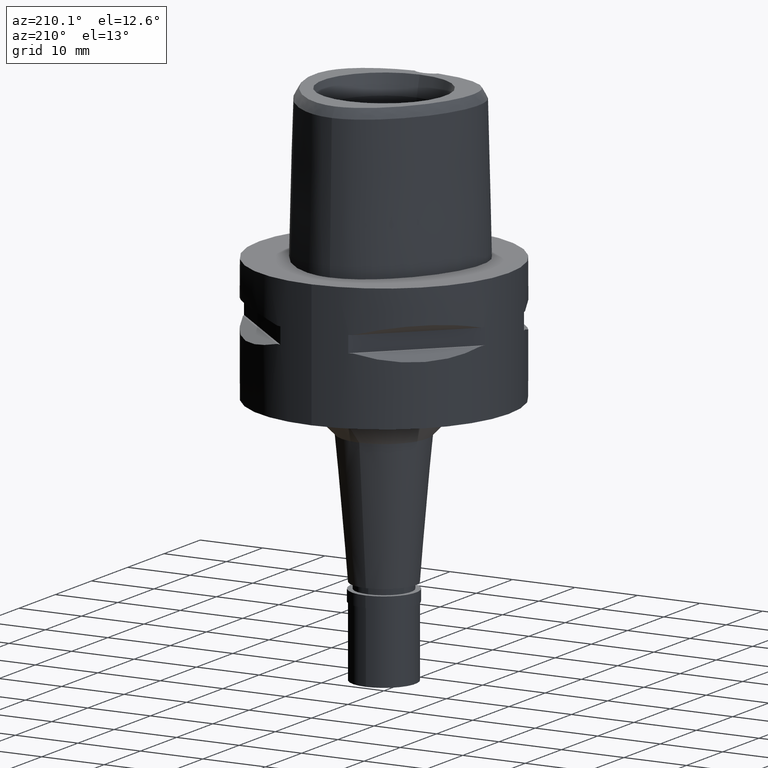
[diagram: clean part render]
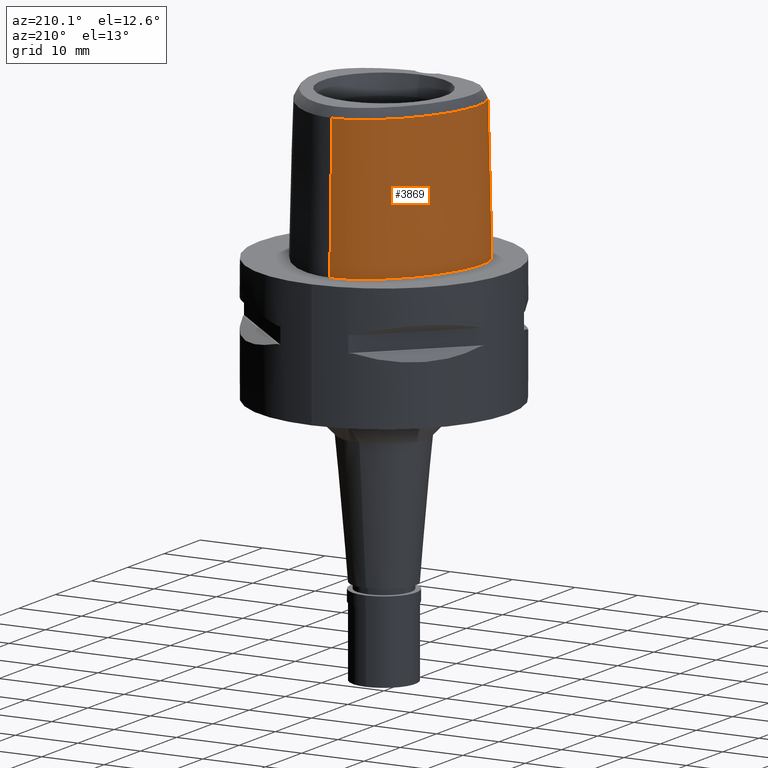
[diagram: same view with one face highlighted and labeled with its STEP entity id]
A machine part, auxiliary view. The second image highlights one B-rep face of the part: STEP entity #3869.
In plain terms, the highlighted face is a freeform B-spline surface patch.
Its self-contained STEP definition (entity closure, byte-faithful):
#5 = CARTESIAN_POINT ( 'NONE',  ( -12.64198523181999967, -7.298853576185000414, 15.16398389776999878 ) ) ;
#20 = CARTESIAN_POINT ( 'NONE',  ( -2.300143802991292841, -12.76057655722843620, 11.36375986572100061 ) ) ;
#30 = CARTESIAN_POINT ( 'NONE',  ( -4.045377554527999742, -12.93507169241999932, -0.4504153632999999823 ) ) ;
#39 = B_SPLINE_CURVE_WITH_KNOTS ( 'NONE', 3,
 ( #2397, #2423, #653, #961, #1726, #3074, #1309, #3142, #3451, #2718, #3775, #633, #2032, #2073, #4566, #2806, #2053, #1384, #4232, #2788, #2440, #3866, #1052, #1680, #673, #582, #2096, #3519, #2372, #4516, #3797, #1332, #94, #2158, #3627, #3228, #2118, #3181, #3579, #2528, #3557, #20, #441, #42, #2875, #4255, #2829, #720, #373, #1857, #742, #418, #4323, #1445, #3910, #2901, #4275, #2138, #1786, #3205, #3274, #1833, #767, #1142, #3251, #702, #3539, #2504, #2184, #3951, #2855, #1097, #1463, #354, #68, #4295, #1767, #1117, #3930, #3974, #1512 ),
 .UNSPECIFIED., .F., .F.,
 ( 4, 2, 2, 1, 1, 2, 2, 2, 2, 1, 2, 1, 2, 2, 2, 2, 1, 1, 2, 2, 2, 2, 2, 2, 2, 2, 1, 1, 2, 2, 2, 2, 1, 2, 2, 2, 1, 1, 2, 2, 2, 2, 1, 1, 2, 2, 4 ),
 ( 0.0000000000000000000, 0.06250000000000464906, 0.09375000000000696665, 0.1093750000000080352, 0.1171875000000085904, 0.1210937500000090067, 0.1250000000000094369, 0.1562500000000116573, 0.1718750000000128231, 0.1875000000000139888, 0.2187500000000159317, 0.2343750000000169587, 0.2421875000000176803, 0.2500000000000183742, 0.3125000000000260347, 0.3437500000000298650, 0.3593750000000314748, 0.3671875000000318634, 0.3710937500000320299, 0.3750000000000322520, 0.4375000000000294764, 0.4687500000000284772, 0.4843750000000283107, 0.5000000000000280886, 0.5625000000000253131, 0.5937500000000238698, 0.6093750000000230926, 0.6171875000000228706, 0.6210937500000223155, 0.6250000000000218714, 0.6562500000000139888, 0.6718750000000099920, 0.6796875000000082157, 0.6835937500000076605, 0.6875000000000071054, 0.7187500000000037748, 0.7343750000000019984, 0.7421875000000011102, 0.7460937500000009992, 0.7500000000000007772, 0.8124999999999993339, 0.8437499999999986677, 0.8593749999999984457, 0.8671874999999984457, 0.8710937499999985567, 0.8749999999999985567, 1.000000000000000000 ),
 .UNSPECIFIED. ) ;
#42 = CARTESIAN_POINT ( 'NONE',  ( -2.245603534414450930, -12.77547641080668406, 10.99707330927152427 ) ) ;
#53 = CARTESIAN_POINT ( 'NONE',  ( -11.56079930577999981, -8.766973826563997818, 15.16398389776999878 ) ) ;
#68 = CARTESIAN_POINT ( 'NONE',  ( -0.9319488030645941556, -12.90881411230990494, 9.397158616747541160 ) ) ;
#81 = CARTESIAN_POINT ( 'NONE',  ( -7.098705609568999542, -11.85792495233000032, 7.356784267233999586 ) ) ;
#94 = CARTESIAN_POINT ( 'NONE',  ( -2.120426573750170185, -12.75267573305423774, 12.39100281169534590 ) ) ;
#98 = CARTESIAN_POINT ( 'NONE',  ( -11.83679699234384941, -9.028767383116687029, -1.760277199610443821E-08 ) ) ;
#109 = CARTESIAN_POINT ( 'NONE',  ( -12.99424142200999910, -6.606040289884000494, 15.16398389776999878 ) ) ;
#126 = CARTESIAN_POINT ( 'NONE',  ( -1.745769949806297294, -12.61172391797590642, 19.99999964621425264 ) ) ;
#136 = VERTEX_POINT ( 'NONE', #3650 ) ;
#140 = CARTESIAN_POINT ( 'NONE',  ( -13.73754041481490162, -5.736583203249609575, -1.760271651205826127E-08 ) ) ;
#206 = B_SPLINE_CURVE_WITH_KNOTS ( 'NONE', 3,
 ( #1184, #4083, #1883, #1530 ),
 .UNSPECIFIED., .F., .F.,
 ( 4, 4 ),
 ( 0.0000000000000000000, 1.000000000000000000 ),
 .UNSPECIFIED. ) ;
#273 = CARTESIAN_POINT ( 'NONE',  ( -0.3913005304272000329, 14.99062904159000098, -0.4504153632999999823 ) ) ;
#296 = CARTESIAN_POINT ( 'NONE',  ( -0.3608217409869999837, 14.40386518138999783, 22.97118352829999921 ) ) ;
#306 = B_SPLINE_CURVE_WITH_KNOTS ( 'NONE', 3,
 ( #3367, #4130, #3433, #1596 ),
 .UNSPECIFIED., .F., .F.,
 ( 4, 4 ),
 ( 0.0000000000000000000, 1.000000000000000000 ),
 .UNSPECIFIED. ) ;
#320 = CARTESIAN_POINT ( 'NONE',  ( -1.513572604213999861, 14.28153431295999987, 22.97118352829999921 ) ) ;
#341 = CARTESIAN_POINT ( 'NONE',  ( -9.075996546496313044, -10.47368666963242667, 22.52071717950007468 ) ) ;
#342 = CARTESIAN_POINT ( 'NONE',  ( 0.4366859256337000117, 14.57070294607999905, 15.16398389776999878 ) ) ;
#354 = CARTESIAN_POINT ( 'NONE',  ( -0.9848863495916158062, -12.90598536776482241, 9.421068656342164616 ) ) ;
#361 = CARTESIAN_POINT ( 'NONE',  ( 0.4604515500308999365, 14.96030144873000012, -0.4504153632999999823 ) ) ;
#373 = CARTESIAN_POINT ( 'NONE',  ( -2.140846386073652408, -12.79421935293861523, 10.65923901443732191 ) ) ;
#383 = CARTESIAN_POINT ( 'NONE',  ( -9.360479237569999000, -10.97457288258999952, -0.4504153632999999823 ) ) ;
#387 = VECTOR ( 'NONE', #1919, 999.9999999999998863 ) ;
#409 = CARTESIAN_POINT ( 'NONE',  ( -12.06000620382000044, -7.835334360271999365, 22.97118352829999921 ) ) ;
#418 = CARTESIAN_POINT ( 'NONE',  ( -2.100781098110155565, -12.80050632932168853, 10.56139995706970147 ) ) ;
#422 = CARTESIAN_POINT ( 'NONE',  ( 1.518862776432000002E-10, 14.96299999995999919, 3.178383482331000482E-13 ) ) ;
#431 = CARTESIAN_POINT ( 'NONE',  ( -6.136343118980000177, 12.36836367501999945, 15.16398389776999878 ) ) ;
#441 = CARTESIAN_POINT ( 'NONE',  ( -2.287734898354136348, -12.76560074340179440, 11.21901780316244590 ) ) ;
#446 = CARTESIAN_POINT ( 'NONE',  ( -13.34121471406663240, -6.760328906428988205, -1.760277199610443821E-08 ) ) ;
#447 = ORIENTED_EDGE ( 'NONE', *, *, #1902, .T. ) ;
#452 = CARTESIAN_POINT ( 'NONE',  ( -2.603602034519999719, -12.50961198144999997, 20.00000000000000000 ) ) ;
#453 = CARTESIAN_POINT ( 'NONE',  ( -11.00320915857999893, 6.352726050055000684, 22.97118352829999921 ) ) ;
#479 = CARTESIAN_POINT ( 'NONE',  ( -13.18504571505999934, -5.572791029787000028, 22.97118352829999921 ) ) ;
#490 = CARTESIAN_POINT ( 'NONE',  ( -0.5439938573678223532, 14.96300000044569778, -1.760276514458634040E-08 ) ) ;
#498 = CARTESIAN_POINT ( 'NONE',  ( 0.8566252932645999074, -12.76751119809000024, 15.16398389776999878 ) ) ;
#581 = VERTEX_POINT ( 'NONE', #2156 ) ;
#582 = CARTESIAN_POINT ( 'NONE',  ( -1.965252258605612035, -12.75916002378914982, 12.69725596527201539 ) ) ;
#593 = LINE ( 'NONE', #2360, #4474 ) ;
#617 = CARTESIAN_POINT ( 'NONE',  ( -12.48241503204928016, -7.206725678149446424, 22.52071717950007823 ) ) ;
#633 = CARTESIAN_POINT ( 'NONE',  ( -0.9448229129271796811, -12.80325335383371410, 13.59813410706257741 ) ) ;
#647 = ORIENTED_EDGE ( 'NONE', *, *, #4379, .F. ) ;
#653 = CARTESIAN_POINT ( 'NONE',  ( -0.2855776774823178266, -12.81694753461941794, 13.78716430547175342 ) ) ;
#672 = ORIENTED_EDGE ( 'NONE', *, *, #4062, .T. ) ;
#673 = CARTESIAN_POINT ( 'NONE',  ( -1.841838764608476842, -12.76497262167226943, 12.88570671879769058 ) ) ;
#684 = CARTESIAN_POINT ( 'NONE',  ( -6.968888528386562697, -11.49954675419569305, 22.52071717950007823 ) ) ;
#685 = EDGE_CURVE ( 'NONE', #2356, #3016, #858, .T. ) ;
#702 = CARTESIAN_POINT ( 'NONE',  ( -1.653748280665647163, -12.85457989003768198, 9.901499109432398527 ) ) ;
#720 = CARTESIAN_POINT ( 'NONE',  ( -2.151849462947669878, -12.79245487688643124, 10.68743969069598165 ) ) ;
#727 = CARTESIAN_POINT ( 'NONE',  ( -9.167104952997998879, -10.63410045272999938, 15.16398389776999878 ) ) ;
#742 = CARTESIAN_POINT ( 'NONE',  ( -2.128793241413423409, -12.79612817070244546, 10.62919246598731959 ) ) ;
#753 = CARTESIAN_POINT ( 'NONE',  ( -13.56059766755000062, -5.684126886172999882, 7.356784267233999586 ) ) ;
#767 = CARTESIAN_POINT ( 'NONE',  ( -1.754951805176105051, -12.84404327703086857, 10.01286862426010060 ) ) ;
#782 = CARTESIAN_POINT ( 'NONE',  ( -13.48500865699000073, -4.287290197512000134, 22.97118352829999921 ) ) ;
#793 = CARTESIAN_POINT ( 'NONE',  ( -3.782076373973885630, 14.19393593789844665, -1.760277199610443821E-08 ) ) ;
#802 = CARTESIAN_POINT ( 'NONE',  ( -12.81132620926000065, -7.396622635352000152, 7.356784267233999586 ) ) ;
#816 = CARTESIAN_POINT ( 'NONE',  ( -14.00068088060102411, -0.1863062499224895918, -1.760277199610443821E-08 ) ) ;
#823 = CARTESIAN_POINT ( 'NONE',  ( -13.62540798884000104, -0.2530731162011000124, 15.16398389776999878 ) ) ;
#851 = CARTESIAN_POINT ( 'NONE',  ( 0.8715805127946999464, -13.15757747069999972, -0.4504153632999999823 ) ) ;
#858 = LINE ( 'NONE', #4041, #387 ) ;
#887 = EDGE_LOOP ( 'NONE', ( #4290, #647, #3682, #672, #894, #1629, #1302, #447 ) ) ;
#894 = ORIENTED_EDGE ( 'NONE', *, *, #4477, .F. ) ;
#914 = CARTESIAN_POINT ( 'NONE',  ( -1.260417588442999891E-08, -12.66301535847000004, 19.99999996345999875 ) ) ;
#961 = CARTESIAN_POINT ( 'NONE',  ( -0.5074042838810917111, -12.81372059559767251, 13.74459566185631054 ) ) ;
#963 = CARTESIAN_POINT ( 'NONE',  ( 0.0000000000000000000, -12.81802318095999915, 13.79999999999999893 ) ) ;
#973 = CARTESIAN_POINT ( 'NONE',  ( 0.2912660299316999768, 14.57955080692000038, 15.16398389776999878 ) ) ;
#1000 = CARTESIAN_POINT ( 'NONE',  ( -4.736458213768398373, -12.13940339377828082, 22.52071717950007823 ) ) ;
#1020 = CARTESIAN_POINT ( 'NONE',  ( -1.515894611550202775, 14.29262276282085331, 22.52071717950008178 ) ) ;
#1041 = CARTESIAN_POINT ( 'NONE',  ( -12.06912915254208052, -7.841969072899914295, 22.52071717950007468 ) ) ;
#1042 = CARTESIAN_POINT ( 'NONE',  ( -3.786921847264999919, 14.20422968936999908, -0.4504153632999999823 ) ) ;
#1052 = CARTESIAN_POINT ( 'NONE',  ( -1.611877499992751428, -12.77653505885875340, 13.14081569331371924 ) ) ;
#1086 = CARTESIAN_POINT ( 'NONE',  ( -10.69740338046999995, -9.843145456860000309, 7.356784267232999497 ) ) ;
#1097 = CARTESIAN_POINT ( 'NONE',  ( -1.123943696502145650, -12.89774608795620203, 9.492107695864113737 ) ) ;
#1105 = CARTESIAN_POINT ( 'NONE',  ( -9.029359461424000699, 9.844403373337998531, 7.356784267233999586 ) ) ;
#1117 = CARTESIAN_POINT ( 'NONE',  ( -0.8887228227232624178, -12.91102071392065831, 9.378616401567338556 ) ) ;
#1126 = CARTESIAN_POINT ( 'NONE',  ( -4.010857410018999758, -12.74186235727000138, 7.356784267233999586 ) ) ;
#1142 = CARTESIAN_POINT ( 'NONE',  ( -1.718104249315451693, -12.84797894397791218, 9.970099457365208195 ) ) ;
#1153 = CARTESIAN_POINT ( 'NONE',  ( -3.941817121002999524, -12.35544368699000017, 22.97118352829999921 ) ) ;
#1175 = CARTESIAN_POINT ( 'NONE',  ( -12.81560170748999994, -6.526604566605999302, 22.97118352829999921 ) ) ;
#1184 = CARTESIAN_POINT ( 'NONE',  ( -2.568703252653000479, -12.45023756080000155, 22.52071717950000007 ) ) ;
#1198 = CARTESIAN_POINT ( 'NONE',  ( 0.5764111317798000789, -12.97358040350000152, 7.356784267232999497 ) ) ;
#1302 = ORIENTED_EDGE ( 'NONE', *, *, #685, .T. ) ;
#1309 = CARTESIAN_POINT ( 'NONE',  ( -0.7499755959852826281, -12.80864488942805401, 13.67492269767373969 ) ) ;
#1332 = CARTESIAN_POINT ( 'NONE',  ( -2.117617568217389667, -12.75277667900067868, 12.39764604230459177 ) ) ;
#1368 = CARTESIAN_POINT ( 'NONE',  ( -12.68166860123694839, 2.767886241323707086, 22.52071717950007823 ) ) ;
#1384 = CARTESIAN_POINT ( 'NONE',  ( -1.401100016634621470, -12.78632403303350884, 13.32553592727867553 ) ) ;
#1390 = CARTESIAN_POINT ( 'NONE',  ( -10.46238780242491018, -9.543613000371523825, 22.52071717950007468 ) ) ;
#1391 = CARTESIAN_POINT ( 'NONE',  ( -3.618945433275000401, 13.84737962440999937, 15.16398389776999878 ) ) ;
#1409 = CARTESIAN_POINT ( 'NONE',  ( -2.568703252653000479, -12.45023756080000155, 22.52071717950000007 ) ) ;
#1410 = CARTESIAN_POINT ( 'NONE',  ( 0.2833924653151000395, 14.38450257609000005, 22.97118352829999921 ) ) ;
#1431 = CARTESIAN_POINT ( 'NONE',  ( -12.21811941712000049, -7.950323029493000959, 15.16398389776999878 ) ) ;
#1445 = CARTESIAN_POINT ( 'NONE',  ( -2.018817522271043163, -12.81220052564507483, 10.39736850500416132 ) ) ;
#1454 = CARTESIAN_POINT ( 'NONE',  ( -11.17307777715999961, 6.450792850036000559, 15.16398389776999878 ) ) ;
#1463 = CARTESIAN_POINT ( 'NONE',  ( -1.030987739345192056, -12.90333795298390918, 9.443720710652691253 ) ) ;
#1473 = CARTESIAN_POINT ( 'NONE',  ( -7.031868867801000178, -11.67341278439000085, 15.16398389776999878 ) ) ;
#1497 = CARTESIAN_POINT ( 'NONE',  ( -6.965032126032999926, -11.48890061645999872, 22.97118352829999921 ) ) ;
#1512 = CARTESIAN_POINT ( 'NONE',  ( -4.757804296533999805E-14, -12.93301545397000041, 9.199999999999999289 ) ) ;
#1515 = CARTESIAN_POINT ( 'NONE',  ( -10.81142122275781148, -9.988463672222380296, -1.760277199610443821E-08 ) ) ;
#1522 = CARTESIAN_POINT ( 'NONE',  ( -13.37282169130000042, -5.628458957980000399, 15.16398389776999878 ) ) ;
#1530 = CARTESIAN_POINT ( 'NONE',  ( -2.603602034519999719, -12.50961198144999997, 20.00000000000000000 ) ) ;
#1543 = CARTESIAN_POINT ( 'NONE',  ( 0.5664558410860999205, -12.58333762260999933, 22.97118352829999921 ) ) ;
#1596 = CARTESIAN_POINT ( 'NONE',  ( 0.0000000000000000000, -12.81802318095999915, 13.79999999999999893 ) ) ;
#1629 = ORIENTED_EDGE ( 'NONE', *, *, #2890, .T. ) ;
#1680 = CARTESIAN_POINT ( 'NONE',  ( -1.743097972661440620, -12.76987166339498891, 13.00957715264290115 ) ) ;
#1682 = CARTESIAN_POINT ( 'NONE',  ( -2.936448433566000072E-13, -13.16299999999999848, 3.172462292866000103E-13 ) ) ;
#1726 = CARTESIAN_POINT ( 'NONE',  ( -0.5819386986818497753, -12.81237603767194599, 13.72652564638335093 ) ) ;
#1738 = CARTESIAN_POINT ( 'NONE',  ( -3.702933640269999938, 14.02580465688999922, 7.356784267232999497 ) ) ;
#1756 = CARTESIAN_POINT ( 'NONE',  ( -11.42690036616751925, -8.639965951774415842, 22.52071717950007468 ) ) ;
#1767 = CARTESIAN_POINT ( 'NONE',  ( -0.8945153555999346695, -12.91072944406699285, 9.381059634973375694 ) ) ;
#1786 = CARTESIAN_POINT ( 'NONE',  ( -1.924883428630889126, -12.82440318964656889, 10.24105807494909648 ) ) ;
#1797 = CARTESIAN_POINT ( 'NONE',  ( -6.014684020865000313, 12.21358544335000218, 22.97118352829999921 ) ) ;
#1822 = CARTESIAN_POINT ( 'NONE',  ( -14.18449853939999983, -2.619126383668000102, -0.4504153632999999823 ) ) ;
#1833 = CARTESIAN_POINT ( 'NONE',  ( -1.826504515500986914, -12.83620081350063380, 10.10016303675815053 ) ) ;
#1836 = CARTESIAN_POINT ( 'NONE',  ( -1.631981572252160895, 14.84698125042945449, -1.760271651205826127E-08 ) ) ;
#1845 = CARTESIAN_POINT ( 'NONE',  ( -11.84499494309999967, -9.036543429037998010, -0.4504153632999999823 ) ) ;
#1857 = CARTESIAN_POINT ( 'NONE',  ( -2.133369772113715257, -12.79540785461998809, 10.64044447588278430 ) ) ;
#1860 = CARTESIAN_POINT ( 'NONE',  ( -12.97089751531586188, -7.488751172095188480, -1.760271651205826127E-08 ) ) ;
#1868 = CARTESIAN_POINT ( 'NONE',  ( -11.51281501433000010, 6.646926449998999509, -0.4504153632999999823 ) ) ;
#1883 = CARTESIAN_POINT ( 'NONE',  ( -2.592184028741372881, -12.48966611859522047, 20.84023905983333336 ) ) ;
#1893 = CARTESIAN_POINT ( 'NONE',  ( -13.35152085104000008, -6.764911736439000123, -0.4504153632999999823 ) ) ;
#1902 = EDGE_CURVE ( 'NONE', #3016, #2052, #3875, .T. ) ;
#1904 = CARTESIAN_POINT ( 'NONE',  ( -6.372642521363226287, 12.66899062535283527, -1.760277199610443821E-08 ) ) ;
#1907 = CARTESIAN_POINT ( 'NONE',  ( -1.260417588442999891E-08, -12.66301535847000004, 19.99999996345999875 ) ) ;
#1919 = DIRECTION ( 'NONE',  ( 9.602520991670188575E-12, 0.02499051293194049644, -0.9996876883624198351 ) ) ;
#2018 = DIRECTION ( 'NONE',  ( -2.673803813757900604E-14, -0.02499051295424905769, -0.9996876883618621701 ) ) ;
#2032 = CARTESIAN_POINT ( 'NONE',  ( -1.011878398766373754, -12.80112054547332079, 13.56692882181785542 ) ) ;
#2052 = VERTEX_POINT ( 'NONE', #1682 ) ;
#2053 = CARTESIAN_POINT ( 'NONE',  ( -1.310334703300464643, -12.79012657991068203, 13.39286631455621546 ) ) ;
#2073 = CARTESIAN_POINT ( 'NONE',  ( -1.115229725332413269, -12.79751522695110211, 13.51191098754960507 ) ) ;
#2085 = CARTESIAN_POINT ( 'NONE',  ( -0.3709813374670999919, 14.59945313479000006, 15.16398389776999878 ) ) ;
#2096 = CARTESIAN_POINT ( 'NONE',  ( -2.002296320555181808, -12.75747848527826456, 12.63397802741203613 ) ) ;
#2118 = CARTESIAN_POINT ( 'NONE',  ( -2.282166019910153665, -12.75165090099520526, 11.79525896608642910 ) ) ;
#2123 = CARTESIAN_POINT ( 'NONE',  ( 1.518862776432000002E-10, 14.96299999995999919, 3.178383482331000482E-13 ) ) ;
#2138 = CARTESIAN_POINT ( 'NONE',  ( -1.936335331577908603, -12.82296972919318456, 10.25874399572378337 ) ) ;
#2146 = CARTESIAN_POINT ( 'NONE',  ( -9.070417810711001394, -10.46386423779999930, 22.97118352829999921 ) ) ;
#2156 = CARTESIAN_POINT ( 'NONE',  ( -2.568703252653000479, -12.45023756080000155, 22.52071717950000007 ) ) ;
#2158 = CARTESIAN_POINT ( 'NONE',  ( -2.183922617254193899, -12.75044120202473685, 12.23808364787375247 ) ) ;
#2171 = CARTESIAN_POINT ( 'NONE',  ( -11.34294639574000030, 6.548859650018000522, 7.356784267232999497 ) ) ;
#2184 = CARTESIAN_POINT ( 'NONE',  ( -1.505001200657008598, -12.86943791852772279, 9.752156969249726970 ) ) ;
#2198 = CARTESIAN_POINT ( 'NONE',  ( -13.98872593243000040, -2.620510733434000095, 7.356784267232999497 ) ) ;
#2205 = VERTEX_POINT ( 'NONE', #963 ) ;
#2209 = CARTESIAN_POINT ( 'NONE',  ( -14.17320396636236879, -2.619206249997534375, -1.760277199610443821E-08 ) ) ;
#2218 = CARTESIAN_POINT ( 'NONE',  ( -1.057767382104999987, -13.20004108134000020, -0.4504153632999999823 ) ) ;
#2233 = CARTESIAN_POINT ( 'NONE',  ( -1.347795335940193739, -13.16300000044139118, -1.760276659752092042E-08 ) ) ;
#2243 = CARTESIAN_POINT ( 'NONE',  ( -14.01182759970999925, -0.1843230757564000011, -0.4504153632999999823 ) ) ;
#2267 = CARTESIAN_POINT ( 'NONE',  ( -1.039641955832000031, -12.80928533185999996, 15.16398389776999878 ) ) ;
#2356 = VERTEX_POINT ( 'NONE', #2432 ) ;
#2360 = CARTESIAN_POINT ( 'NONE',  ( -4.757804296533999805E-14, -12.93301545397000041, 9.199999999999999289 ) ) ;
#2372 = CARTESIAN_POINT ( 'NONE',  ( -2.075653757163897328, -12.75436700818544011, 12.49185155364052235 ) ) ;
#2381 = CARTESIAN_POINT ( 'NONE',  ( -6.443694316511000534E-11, 14.40001989798000182, 22.52071729252999788 ) ) ;
#2397 = CARTESIAN_POINT ( 'NONE',  ( 0.0000000000000000000, -12.81802318095999915, 13.79999999999999893 ) ) ;
#2407 = CARTESIAN_POINT ( 'NONE',  ( -12.82590901148613582, -6.531187915556036394, 22.52071717950007468 ) ) ;
#2411 = B_SPLINE_CURVE_WITH_KNOTS ( 'NONE', 3,
 ( #1409, #3103, #1000, #684, #341, #1390, #1756, #1041, #617, #2407, #3458, #3781, #4173, #2775, #1368, #4590, #4526, #4148, #3169, #1020, #3081, #2381 ),
 .UNSPECIFIED., .F., .F.,
 ( 4, 1, 1, 1, 1, 1, 1, 1, 1, 1, 1, 1, 1, 1, 1, 1, 1, 1, 1, 4 ),
 ( 0.0000000000000000000, 0.03040433083231408248, 0.1185493916654516006, 0.1626219220818617694, 0.2066944524983776177, 0.2507669829149992702, 0.2728032481232043338, 0.2948395133314093419, 0.3168757785398259030, 0.3389120437480309667, 0.3829845741645468427, 0.4270571045810626631, 0.4711296349975786502, 0.5592746958306104021, 0.6474197566637478474, 0.7355648174967795994, 0.8237098783298112403, 0.9118549391628536505, 0.9559274695793695820, 1.000000000000000000 ),
 .UNSPECIFIED. ) ;
#2423 = CARTESIAN_POINT ( 'NONE',  ( -0.1401305126056105743, -12.81802318096000270, 13.80000000000000249 ) ) ;
#2432 = CARTESIAN_POINT ( 'NONE',  ( -6.443694316511000534E-11, 14.40001989798000182, 22.52071729252999788 ) ) ;
#2440 = CARTESIAN_POINT ( 'NONE',  ( -1.572442839314114105, -12.77847914798856088, 13.17862367268234181 ) ) ;
#2492 = CARTESIAN_POINT ( 'NONE',  ( -10.45540632802999959, -9.534714959684999158, 22.97118352829999921 ) ) ;
#2504 = CARTESIAN_POINT ( 'NONE',  ( -1.635013697133319344, -12.85646650681847447, 9.882332749081344403 ) ) ;
#2516 = CARTESIAN_POINT ( 'NONE',  ( -13.04019919873000077, 2.897436279874999965, 7.356784267233999586 ) ) ;
#2528 = CARTESIAN_POINT ( 'NONE',  ( -2.299064434898544729, -12.75538865175285252, 11.57511939275938850 ) ) ;
#2543 = CARTESIAN_POINT ( 'NONE',  ( -13.43219818340999971, -0.2874481364234999781, 22.97118352829999921 ) ) ;
#2568 = CARTESIAN_POINT ( 'NONE',  ( -13.67906220222999814, -4.314970306036999936, 15.16398389776999878 ) ) ;
#2586 = CARTESIAN_POINT ( 'NONE',  ( -8.879307729414000150, 9.717869198104999384, 15.16398389776999878 ) ) ;
#2610 = CARTESIAN_POINT ( 'NONE',  ( 0.5714334864329999597, -12.77845901305999909, 15.16398389776999878 ) ) ;
#2718 = CARTESIAN_POINT ( 'NONE',  ( -0.8618360501669412033, -12.80564904629979495, 13.63244908506613662 ) ) ;
#2775 = CARTESIAN_POINT ( 'NONE',  ( -13.44334616472509758, -0.2854647376912637924, 22.52071717950007468 ) ) ;
#2788 = CARTESIAN_POINT ( 'NONE',  ( -1.531093129367631311, -12.78047425280173321, 13.21704160996870492 ) ) ;
#2796 = CARTESIAN_POINT ( 'NONE',  ( -3.534957226281000064, 13.66895459194000040, 22.97118352829999921 ) ) ;
#2806 = CARTESIAN_POINT ( 'NONE',  ( -1.214948594906910095, -12.79380401828840874, 13.45328328240799287 ) ) ;
#2817 = CARTESIAN_POINT ( 'NONE',  ( -1.634303316630999925, 14.85806844484000067, -0.4504153632999999823 ) ) ;
#2829 = CARTESIAN_POINT ( 'NONE',  ( -2.176051754930679483, -12.78846570138717098, 10.75327920937323789 ) ) ;
#2846 = CARTESIAN_POINT ( 'NONE',  ( -11.70289712443999974, -8.901758627800999690, 7.356784267232999497 ) ) ;
#2855 = CARTESIAN_POINT ( 'NONE',  ( -1.186927697903354284, -12.89362213064987905, 9.528479479260461460 ) ) ;
#2864 = CARTESIAN_POINT ( 'NONE',  ( -9.179411193433999472, 9.970937548570999454, -0.4504153632999999823 ) ) ;
#2875 = CARTESIAN_POINT ( 'NONE',  ( -2.227644355449671654, -12.77915819796579733, 10.92230603779528586 ) ) ;
#2887 = CARTESIAN_POINT ( 'NONE',  ( -8.729255997403001288, 9.591335022873000327, 22.97118352829999921 ) ) ;
#2890 = EDGE_CURVE ( 'NONE', #581, #2356, #2411, .T. ) ;
#2901 = CARTESIAN_POINT ( 'NONE',  ( -1.969151562591274551, -12.81878448191199205, 10.31136768718370256 ) ) ;
#2904 = CARTESIAN_POINT ( 'NONE',  ( -13.21414037088214499, 2.960287500151137507, -1.760271651205826127E-08 ) ) ;
#2915 = CARTESIAN_POINT ( 'NONE',  ( -13.17288113651999915, -6.685476013160999820, 7.356784267232999497 ) ) ;
#2931 = CARTESIAN_POINT ( 'NONE',  ( -9.354901133425343573, -10.96475156288171426, -1.760277199610443821E-08 ) ) ;
#2938 = CARTESIAN_POINT ( 'NONE',  ( -12.98066718671000075, -7.494391694518999891, -0.4504153632999999823 ) ) ;
#2960 = CARTESIAN_POINT ( 'NONE',  ( -1.030579242695999875, -12.61390745712999895, 22.97118352829999921 ) ) ;
#3016 = VERTEX_POINT ( 'NONE', #2123 ) ;
#3027 = VERTEX_POINT ( 'NONE', #452 ) ;
#3074 = CARTESIAN_POINT ( 'NONE',  ( -0.6939323844612987902, -12.80995583340564181, 13.69316554814096421 ) ) ;
#3081 = CARTESIAN_POINT ( 'NONE',  ( -0.5039711950886349712, 14.40001990034313906, 22.52071717950007468 ) ) ;
#3103 = CARTESIAN_POINT ( 'NONE',  ( -3.014424021963483913, -12.39773933600348776, 22.52071717950007468 ) ) ;
#3127 = CARTESIAN_POINT ( 'NONE',  ( 0.4485687378322999463, 14.76550219740000003, 7.356784267233999586 ) ) ;
#3142 = CARTESIAN_POINT ( 'NONE',  ( -0.8152708980165712660, -12.80693898155979049, 13.65082120268139221 ) ) ;
#3151 = CARTESIAN_POINT ( 'NONE',  ( 0.3070131591647999869, 14.96964726857999928, -0.4504153632999999823 ) ) ;
#3169 = CARTESIAN_POINT ( 'NONE',  ( -3.539803248252681112, 13.67924950903127801, 22.52071717950007468 ) ) ;
#3170 = CARTESIAN_POINT ( 'NONE',  ( -6.258002217095000042, 12.52314190668999849, 7.356784267232999497 ) ) ;
#3181 = CARTESIAN_POINT ( 'NONE',  ( -2.292850093586978666, -12.75329599771171907, 11.68494147239040259 ) ) ;
#3205 = CARTESIAN_POINT ( 'NONE',  ( -1.918338618982708743, -12.82521576174282885, 10.23111646875308800 ) ) ;
#3219 = CARTESIAN_POINT ( 'NONE',  ( -7.165542351336999793, -12.04243712026999980, -0.4504153632999999823 ) ) ;
#3228 = CARTESIAN_POINT ( 'NONE',  ( -2.271431586346507547, -12.75091221571057787, 11.86913203842019549 ) ) ;
#3241 = CARTESIAN_POINT ( 'NONE',  ( -12.53434584374000060, -8.180300367935000594, -0.4504153632999999823 ) ) ;
#3251 = CARTESIAN_POINT ( 'NONE',  ( -1.673318493212271107, -12.85259581698450226, 9.921828725747491973 ) ) ;
#3254 = CARTESIAN_POINT ( 'NONE',  ( -9.170754363079433702, 9.963637500285159376, -1.760271651205826127E-08 ) ) ;
#3263 = CARTESIAN_POINT ( 'NONE',  ( -13.74837364378999993, -5.739794814365999365, -0.4504153632999999823 ) ) ;
#3274 = CARTESIAN_POINT ( 'NONE',  ( -1.871347986755834025, -12.83101099829895020, 10.16070205657113412 ) ) ;
#3277 = CARTESIAN_POINT ( 'NONE',  ( -12.52522392794399586, -8.173666406508436566, -1.760277199610443821E-08 ) ) ;
#3290 = CARTESIAN_POINT ( 'NONE',  ( -13.81861779426999881, -0.2186980959786999912, 7.356784267232999497 ) ) ;
#3315 = CARTESIAN_POINT ( 'NONE',  ( 0.8491476834996000145, -12.57247806178000005, 22.97118352829999921 ) ) ;
#3327 = CARTESIAN_POINT ( 'NONE',  ( -11.50301490210205024, 6.641268750221205330, -1.760277199610443821E-08 ) ) ;
#3367 = CARTESIAN_POINT ( 'NONE',  ( -1.260417588442999891E-08, -12.66301535847000004, 19.99999996345999875 ) ) ;
#3375 = CARTESIAN_POINT ( 'NONE',  ( -2.936448433566000072E-13, -13.16299999999999848, 3.172462292866000103E-13 ) ) ;
#3377 = CARTESIAN_POINT ( 'NONE',  ( -2.603602034519999719, -12.50961198144999997, 20.00000000000000000 ) ) ;
#3433 = CARTESIAN_POINT ( 'NONE',  ( -4.221042120354047435E-09, -12.76635998234206326, 15.86666680636509774 ) ) ;
#3451 = CARTESIAN_POINT ( 'NONE',  ( -0.8432163855915284500, -12.80617006249601708, 13.63988004449705294 ) ) ;
#3458 = CARTESIAN_POINT ( 'NONE',  ( -13.19588017074350539, -5.576003004572465116, 22.52071717950007823 ) ) ;
#3460 = CARTESIAN_POINT ( 'NONE',  ( 0.4248031134350999660, 14.37590369475000074, 22.97118352829999921 ) ) ;
#3479 = CARTESIAN_POINT ( 'NONE',  ( -0.3811409339470999691, 14.79504108819000052, 7.356784267232999497 ) ) ;
#3519 = CARTESIAN_POINT ( 'NONE',  ( -2.052152098439465000, -12.75534016868717835, 12.53920447716560105 ) ) ;
#3527 = CARTESIAN_POINT ( 'NONE',  ( -6.379661315210999994, 12.67792013837000020, -0.4504153632999999823 ) ) ;
#3539 = CARTESIAN_POINT ( 'NONE',  ( -1.640618828100756321, -12.85590380833830970, 9.888026571611275628 ) ) ;
#3546 = FACE_OUTER_BOUND ( 'NONE', #887, .T. ) ;
#3557 = CARTESIAN_POINT ( 'NONE',  ( -2.299962475646547322, -12.75624581463247331, 11.53706806114474936 ) ) ;
#3568 = CARTESIAN_POINT ( 'NONE',  ( -10.81840190668999924, -9.997360705446999063, -0.4504153632999999823 ) ) ;
#3579 = CARTESIAN_POINT ( 'NONE',  ( -2.295509092785640082, -12.75393387474880669, 11.64825047697175364 ) ) ;
#3595 = CARTESIAN_POINT ( 'NONE',  ( -12.37623263042999966, -8.065311698713999888, 7.356784267232999497 ) ) ;
#3618 = CARTESIAN_POINT ( 'NONE',  ( -14.06716929270000094, -4.370330523088000518, -0.4504153632999999823 ) ) ;
#3627 = CARTESIAN_POINT ( 'NONE',  ( -2.227964660006181319, -12.74977029743578250, 12.09060403548146923 ) ) ;
#3631 = CARTESIAN_POINT ( 'NONE',  ( -14.05597389629732774, -4.368733593812429206, -1.760271651205826127E-08 ) ) ;
#3641 = CARTESIAN_POINT ( 'NONE',  ( -1.048704668967999964, -13.00466320660000008, 7.356784267232999497 ) ) ;
#3645 = EDGE_CURVE ( 'NONE', #136, #2052, #593, .T. ) ;
#3650 = CARTESIAN_POINT ( 'NONE',  ( -4.757804296533999805E-14, -12.93301545397000041, 9.199999999999999289 ) ) ;
#3667 = CARTESIAN_POINT ( 'NONE',  ( -13.59718071849999887, -2.623279432967000169, 22.97118352829999921 ) ) ;
#3670 = EDGE_CURVE ( 'NONE', #3889, #2205, #306, .T. ) ;
#3682 = ORIENTED_EDGE ( 'NONE', *, *, #3670, .F. ) ;
#3689 = CARTESIAN_POINT ( 'NONE',  ( 0.8641029030297000535, -12.96254433439000131, 7.356784267233999586 ) ) ;
#3724 = CARTESIAN_POINT ( 'NONE',  ( -0.8728571771469741947, -12.66303360443657944, 19.99999964621424553 ) ) ;
#3775 = CARTESIAN_POINT ( 'NONE',  ( -0.8723905964265249446, -12.80534818375293327, 13.62814720800847290 ) ) ;
#3781 = CARTESIAN_POINT ( 'NONE',  ( -13.49620532111193683, -4.288887307616996658, 22.52071717950007823 ) ) ;
#3797 = CARTESIAN_POINT ( 'NONE',  ( -2.110909525984960844, -12.75302106767308530, 12.41330912378776929 ) ) ;
#3866 = CARTESIAN_POINT ( 'NONE',  ( -1.599690988516359047, -12.77714212764092494, 13.15267742123480410 ) ) ;
#3869 = ADVANCED_FACE ( 'NONE', ( #3546 ), #4579, .T. ) ;
#3875 = B_SPLINE_CURVE_WITH_KNOTS ( 'NONE', 3,
 ( #422, #490, #1836, #793, #1904, #3254, #3327, #2904, #816, #2209, #3631, #140, #446, #1860, #3277, #98, #1515, #2931, #4351, #3998, #2233, #3375 ),
 .UNSPECIFIED., .F., .F.,
 ( 4, 1, 1, 1, 1, 1, 1, 1, 1, 1, 1, 1, 1, 1, 1, 1, 1, 1, 1, 4 ),
 ( 0.0000000000000000000, 0.04166666667038999849, 0.08333333333689001143, 0.1666666666699000154, 0.2500000000029000136, 0.3333333333358999839, 0.4166666666690000409, 0.5000000000019999558, 0.5416666666685000520, 0.5833333333350000371, 0.6250000000015000223, 0.6458333333347000549, 0.6666666666681000386, 0.6875000000012999601, 0.7083333333344999927, 0.7500000000011000090, 0.7916666666675999942, 0.8333333333340000593, 0.9166666666671000607, 1.000000000000000000 ),
 .UNSPECIFIED. ) ;
#3889 = VERTEX_POINT ( 'NONE', #914 ) ;
#3910 = CARTESIAN_POINT ( 'NONE',  ( -1.999884899135028427, -12.81476042234132073, 10.36330347219744574 ) ) ;
#3919 = CARTESIAN_POINT ( 'NONE',  ( -9.263792095284001604, -10.80433666765999945, 7.356784267232999497 ) ) ;
#3930 = CARTESIAN_POINT ( 'NONE',  ( -0.5889969291364981485, -12.92583349803551940, 9.254553718820245578 ) ) ;
#3940 = CARTESIAN_POINT ( 'NONE',  ( -12.85560856749000003, 2.830737025864999978, 15.16398389776999878 ) ) ;
#3951 = CARTESIAN_POINT ( 'NONE',  ( -1.376879184711237158, -12.88006211686740521, 9.651496333328504207 ) ) ;
#3966 = CARTESIAN_POINT ( 'NONE',  ( -11.41870148710999899, -8.632189025326999499, 22.97118352829999921 ) ) ;
#3974 = CARTESIAN_POINT ( 'NONE',  ( -0.2871975164134053515, -12.93301545396999863, 9.199999999999999289 ) ) ;
#3987 = CARTESIAN_POINT ( 'NONE',  ( -10.57640485425000065, -9.688930208271997913, 15.16398389776999878 ) ) ;
#3998 = CARTESIAN_POINT ( 'NONE',  ( -4.043386007807237448, -12.92392500044313763, -1.760271651205826127E-08 ) ) ;
#4007 = CARTESIAN_POINT ( 'NONE',  ( -12.67101793626000017, 2.764037771853999903, 22.97118352829999921 ) ) ;
#4032 = CARTESIAN_POINT ( 'NONE',  ( 0.5813887771265999760, -13.16870179395000129, -0.4504153632999999823 ) ) ;
#4041 = CARTESIAN_POINT ( 'NONE',  ( -6.443694316511000534E-11, 14.40001989798000182, 22.52071729252999788 ) ) ;
#4062 = EDGE_CURVE ( 'NONE', #3889, #3027, #4201, .T. ) ;
#4083 = CARTESIAN_POINT ( 'NONE',  ( -2.580556340274079208, -12.46988384530705041, 21.68047811966666671 ) ) ;
#4130 = CARTESIAN_POINT ( 'NONE',  ( -4.211310851955851467E-09, -12.71469678372764278, 17.93333361273023030 ) ) ;
#4148 = CARTESIAN_POINT ( 'NONE',  ( -6.021703609490843156, 12.22251596750637681, 22.52071717950007468 ) ) ;
#4150 = CARTESIAN_POINT ( 'NONE',  ( 0.2991395945481999941, 14.77459903775000072, 7.356784267233999586 ) ) ;
#4173 = CARTESIAN_POINT ( 'NONE',  ( -13.60847657048610060, -2.623199557593745457, 22.52071717950007468 ) ) ;
#4200 = CARTESIAN_POINT ( 'NONE',  ( -1.553816175019999912, 14.47371235691999836, 15.16398389776999878 ) ) ;
#4201 = B_SPLINE_CURVE_WITH_KNOTS ( 'NONE', 3,
 ( #1907, #3724, #126, #3377 ),
 .UNSPECIFIED., .F., .F.,
 ( 4, 4 ),
 ( 0.0000000000000000000, 1.000000000000000000 ),
 .UNSPECIFIED. ) ;
#4232 = CARTESIAN_POINT ( 'NONE',  ( -1.488347988393550869, -12.78243808049003505, 13.25392016210674306 ) ) ;
#4255 = CARTESIAN_POINT ( 'NONE',  ( -2.194313938148277909, -12.78526572574067899, 10.80969661529741899 ) ) ;
#4266 = CARTESIAN_POINT ( 'NONE',  ( -13.87311574747000087, -4.342650414562999828, 7.356784267233999586 ) ) ;
#4275 = CARTESIAN_POINT ( 'NONE',  ( -1.953201304415306705, -12.82084256532890443, 10.28519075025628560 ) ) ;
#4283 = CARTESIAN_POINT ( 'NONE',  ( -13.22478982995999885, 2.964135533886000040, -0.4504153632999999823 ) ) ;
#4290 = ORIENTED_EDGE ( 'NONE', *, *, #3645, .F. ) ;
#4295 = CARTESIAN_POINT ( 'NONE',  ( -0.9094609401185417275, -12.90997073725080924, 9.387431234174387740 ) ) ;
#4308 = CARTESIAN_POINT ( 'NONE',  ( -13.79295332546000097, -2.621895083200999732, 15.16398389776999878 ) ) ;
#4323 = CARTESIAN_POINT ( 'NONE',  ( -2.071380972957955979, -12.80488926460895271, 10.49747195909083430 ) ) ;
#4337 = CARTESIAN_POINT ( 'NONE',  ( -3.976337265510999419, -12.54865302212999900, 15.16398389776999878 ) ) ;
#4351 = CARTESIAN_POINT ( 'NONE',  ( -7.161686385616464534, -12.03179218792024585, -1.760271651205826127E-08 ) ) ;
#4360 = CARTESIAN_POINT ( 'NONE',  ( -12.47264425437999869, -7.201084517016999698, 22.97118352829999921 ) ) ;
#4379 = EDGE_CURVE ( 'NONE', #2205, #136, #39, .T. ) ;
#4474 = VECTOR ( 'NONE', #2018, 1000.000000000000000 ) ;
#4477 = EDGE_CURVE ( 'NONE', #581, #3027, #206, .T. ) ;
#4516 = CARTESIAN_POINT ( 'NONE',  ( -2.100682809757366432, -12.75339965040591750, 12.43682748920701542 ) ) ;
#4526 = CARTESIAN_POINT ( 'NONE',  ( -8.737913808019978745, 9.598635897784959070, 22.52071717950007823 ) ) ;
#4550 = CARTESIAN_POINT ( 'NONE',  ( -1.594059745824999874, 14.66589040087999862, 7.356784267233999586 ) ) ;
#4566 = CARTESIAN_POINT ( 'NONE',  ( -1.150408608482918149, -12.79622784198479657, 13.49197783700753739 ) ) ;
#4579 = B_SPLINE_SURFACE_WITH_KNOTS ( 'NONE', 3, 3, ( 
 ( #361, #3127, #342, #3460 ),
 ( #3151, #4150, #973, #1410 ),
 ( #273, #3479, #2085, #296 ),
 ( #2817, #4550, #4200, #320 ),
 ( #1042, #1738, #1391, #2796 ),
 ( #3527, #3170, #431, #1797 ),
 ( #2864, #1105, #2586, #2887 ),
 ( #1868, #2171, #1454, #453 ),
 ( #4283, #2516, #3940, #4007 ),
 ( #2243, #3290, #823, #2543 ),
 ( #1822, #2198, #4308, #3667 ),
 ( #3618, #4266, #2568, #782 ),
 ( #3263, #753, #1522, #479 ),
 ( #1893, #2915, #109, #1175 ),
 ( #2938, #802, #5, #4360 ),
 ( #3241, #3595, #1431, #409 ),
 ( #1845, #2846, #53, #3966 ),
 ( #3568, #1086, #3987, #2492 ),
 ( #383, #3919, #727, #2146 ),
 ( #3219, #81, #1473, #1497 ),
 ( #30, #1126, #4337, #1153 ),
 ( #2218, #3641, #2267, #2960 ),
 ( #4032, #1198, #2610, #1543 ),
 ( #851, #3689, #498, #3315 ) ),
 .UNSPECIFIED., .F., .F., .F.,
 ( 4, 1, 1, 1, 1, 1, 1, 1, 1, 1, 1, 1, 1, 1, 1, 1, 1, 1, 1, 1, 1, 4 ),
 ( 4, 4 ),
 ( -0.01174028709098000160, 0.0000000000000000000, 0.04166666667038999849, 0.08333333333689001143, 0.1666666666699000154, 0.2500000000029000136, 0.3333333333358999839, 0.4166666666690000409, 0.5000000000019999558, 0.5416666666685000520, 0.5833333333350000371, 0.6250000000015000223, 0.6458333333347000549, 0.6666666666681000386, 0.6875000000012999601, 0.7083333333344999927, 0.7500000000011000090, 0.7916666666675999942, 0.8333333333340000593, 0.9166666666671000607, 1.000000000000000000, 1.017964572395999800 ),
 ( -3.910347781687999642E-08, 1.000001994276999984 ),
 .UNSPECIFIED. ) ;
#4590 = CARTESIAN_POINT ( 'NONE',  ( -11.01301038053008163, 6.358384390486464532, 22.52071717950007468 ) ) ;